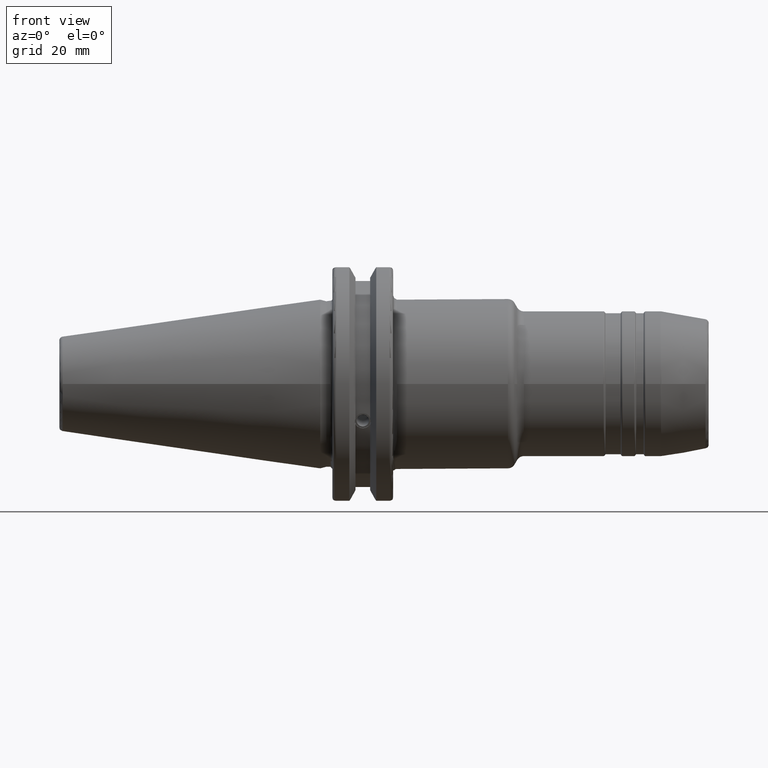
[diagram: clean part render]
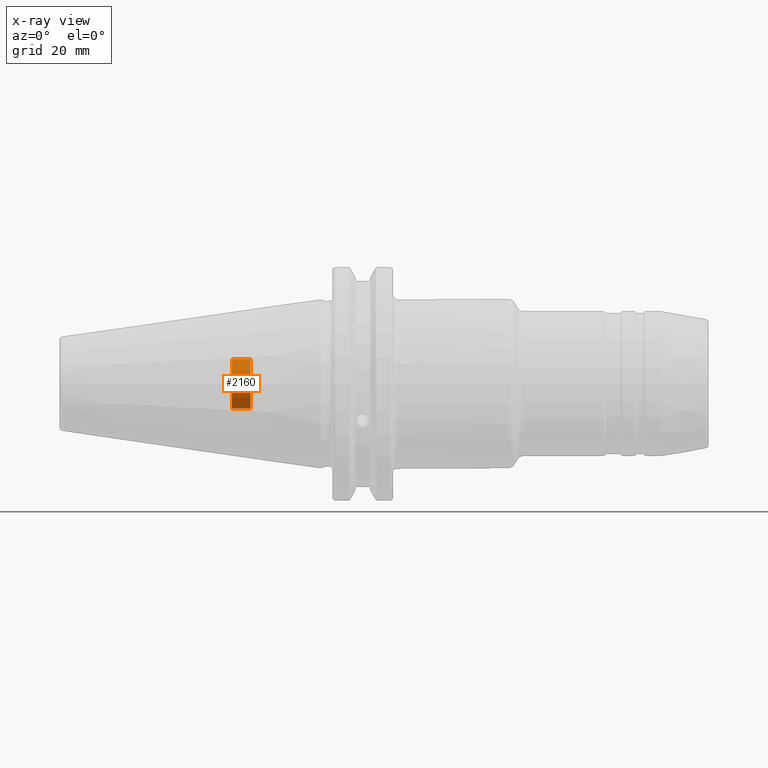
[diagram: x-ray — body ghosted, one internal face saturated and labeled with its STEP entity id]
A machine part, front view, then the same camera in x-ray: the body is ghosted and one INTERNAL B-rep face — a face not visible from any outside direction — is saturated and labeled: STEP entity #2160.
In plain terms, the highlighted cylindrical surface (bore or boss wall) has radius 6.5 mm, axis along (-1, 0, 0).
Its self-contained STEP definition (entity closure, byte-faithful):
#202=FACE_OUTER_BOUND('',#315,.T.);
#315=EDGE_LOOP('',(#1631,#1632,#1633,#1634,#1635));
#417=LINE('',#3614,#522);
#522=VECTOR('',#2852,6.5);
#711=CIRCLE('',#2388,6.5);
#712=CIRCLE('',#2389,6.5);
#713=CIRCLE('',#2391,6.5);
#884=VERTEX_POINT('',#3606);
#885=VERTEX_POINT('',#3607);
#886=VERTEX_POINT('',#3612);
#1162=EDGE_CURVE('',#884,#885,#711,.T.);
#1164=EDGE_CURVE('',#885,#884,#712,.T.);
#1165=EDGE_CURVE('',#886,#886,#713,.T.);
#1166=EDGE_CURVE('',#886,#885,#417,.T.);
#1631=ORIENTED_EDGE('',*,*,#1165,.F.);
#1632=ORIENTED_EDGE('',*,*,#1166,.T.);
#1633=ORIENTED_EDGE('',*,*,#1162,.F.);
#1634=ORIENTED_EDGE('',*,*,#1164,.F.);
#1635=ORIENTED_EDGE('',*,*,#1166,.F.);
#2103=CYLINDRICAL_SURFACE('',#2390,6.5);
#2160=ADVANCED_FACE('',(#202),#2103,.F.);
#2388=AXIS2_PLACEMENT_3D('',#3608,#2843,#2844);
#2389=AXIS2_PLACEMENT_3D('',#3610,#2846,#2847);
#2390=AXIS2_PLACEMENT_3D('',#3611,#2848,#2849);
#2391=AXIS2_PLACEMENT_3D('',#3613,#2850,#2851);
#2843=DIRECTION('center_axis',(-1.,0.,0.));
#2844=DIRECTION('ref_axis',(0.,0.,1.));
#2846=DIRECTION('center_axis',(-1.,0.,0.));
#2847=DIRECTION('ref_axis',(0.,0.,1.));
#2848=DIRECTION('center_axis',(-1.,0.,0.));
#2849=DIRECTION('ref_axis',(0.,0.,1.));
#2850=DIRECTION('center_axis',(1.,0.,0.));
#2851=DIRECTION('ref_axis',(0.,0.,1.));
#2852=DIRECTION('',(1.,0.,0.));
#3606=CARTESIAN_POINT('',(-18.25,0.,6.5));
#3607=CARTESIAN_POINT('',(-18.25,-7.9602041944578E-16,-6.5));
#3608=CARTESIAN_POINT('Origin',(-18.25,0.,0.));
#3610=CARTESIAN_POINT('Origin',(-18.25,0.,0.));
#3611=CARTESIAN_POINT('Origin',(-43.25,0.,0.));
#3612=CARTESIAN_POINT('',(-23.1340939865896,7.9602041944578E-16,-6.5));
#3613=CARTESIAN_POINT('Origin',(-23.1340939865896,0.,0.));
#3614=CARTESIAN_POINT('',(-43.25,-7.9602041944578E-16,-6.5));